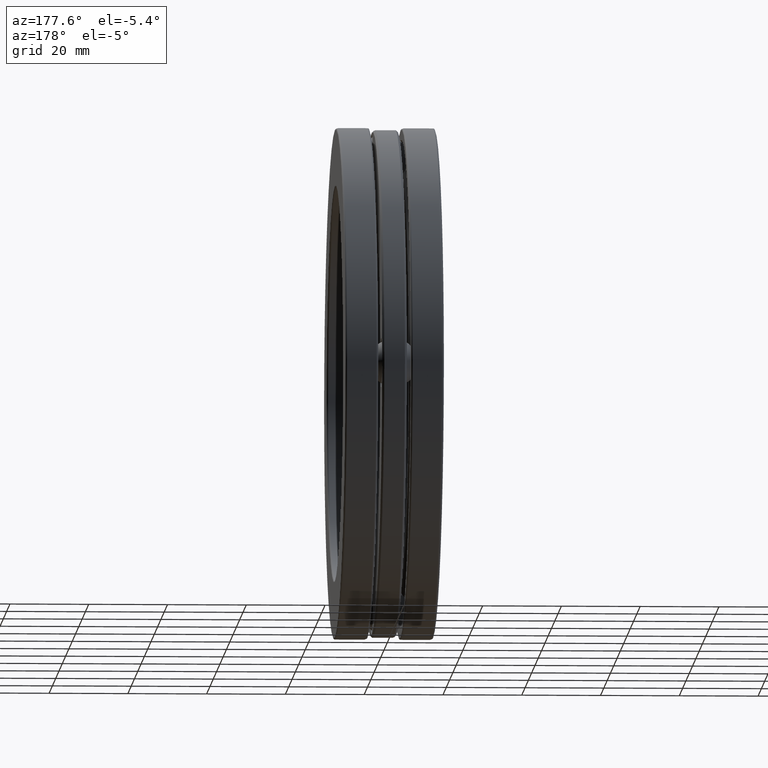
[diagram: clean part render]
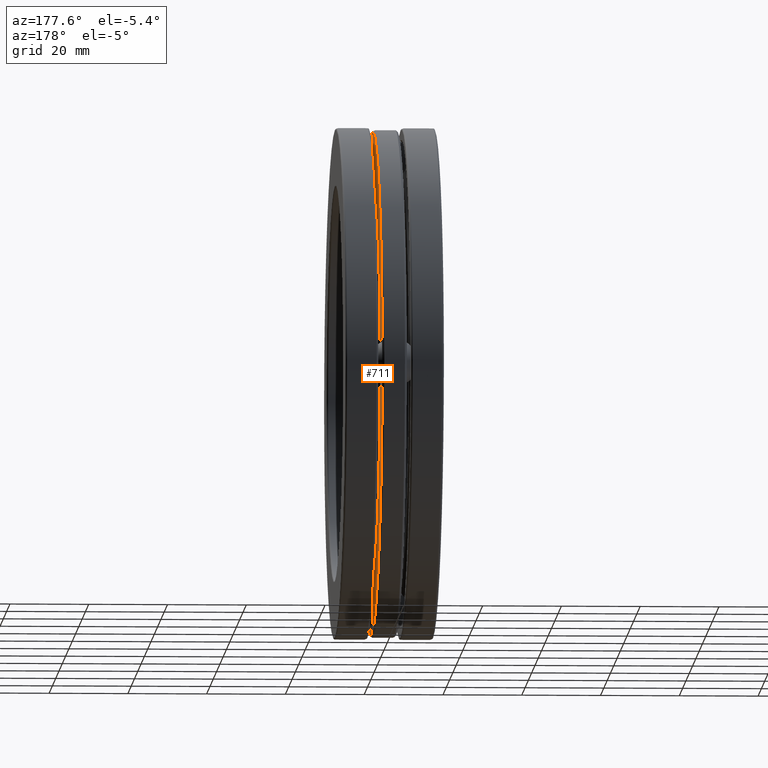
[diagram: same view with one face highlighted and labeled with its STEP entity id]
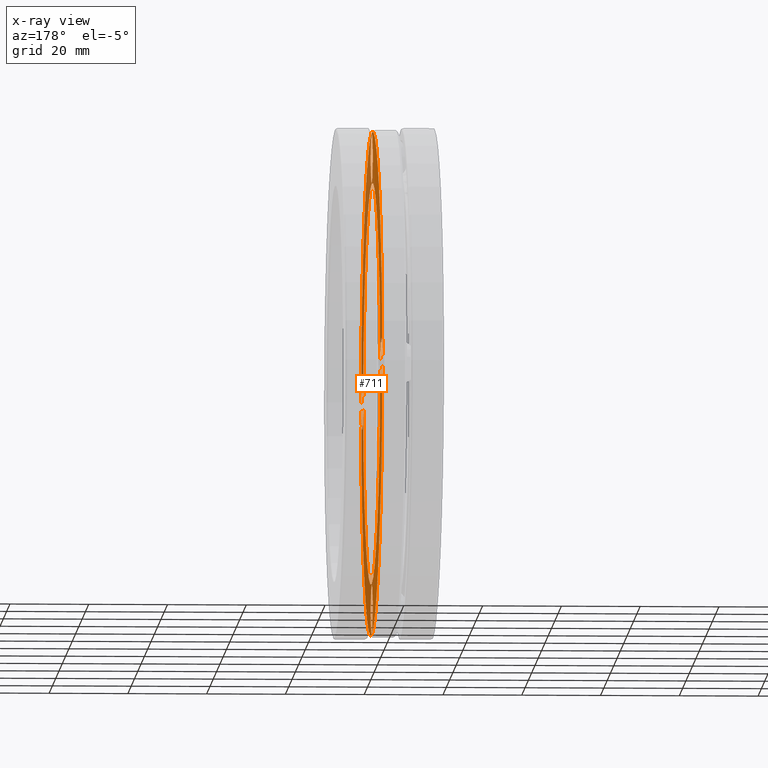
[diagram: x-ray of the same camera — body ghosted, the highlighted face saturated]
A machine part, auxiliary view. The second image highlights one B-rep face of the part: STEP entity #711.
The next image is the same camera in x-ray: the body ghosted, the highlighted face saturated — about 52% of this face is hidden behind the body in this view.
In plain terms, the highlighted planar face has unit normal (1, 0, 0).
Its self-contained STEP definition (entity closure, byte-faithful):
#12 = FACE_BOUND ( 'NONE', #197, .T. ) ;
#26 = CARTESIAN_POINT ( 'NONE',  ( 0.1230000000000000000, 2.263749999999999900, 0.0000000000000000000 ) ) ;
#34 = FACE_BOUND ( 'NONE', #412, .T. ) ;
#45 = VERTEX_POINT ( 'NONE', #736 ) ;
#57 = EDGE_CURVE ( 'NONE', #381, #381, #739, .T. ) ;
#61 = CARTESIAN_POINT ( 'NONE',  ( 0.1230000000000000000, 2.263749999999999900, -0.2470000000000005000 ) ) ;
#86 = ORIENTED_EDGE ( 'NONE', *, *, #275, .F. ) ;
#88 = DIRECTION ( 'NONE',  ( 0.0000000000000000000, -1.000000000000000000, 3.318034000401932600E-015 ) ) ;
#90 = DIRECTION ( 'NONE',  ( 0.0000000000000000000, 0.0000000000000000000, 1.000000000000000000 ) ) ;
#108 = EDGE_CURVE ( 'NONE', #45, #45, #658, .T. ) ;
#111 = DIRECTION ( 'NONE',  ( 0.0000000000000000000, 0.0000000000000000000, 1.000000000000000000 ) ) ;
#122 = CARTESIAN_POINT ( 'NONE',  ( 0.1230000000000000300, 0.0000000000000000000, 2.008500000000000600 ) ) ;
#127 = CIRCLE ( 'NONE', #516, 2.008500000000000600 ) ;
#129 = ORIENTED_EDGE ( 'NONE', *, *, #433, .F. ) ;
#144 = AXIS2_PLACEMENT_3D ( 'NONE', #26, #335, #786 ) ;
#172 = FACE_BOUND ( 'NONE', #806, .T. ) ;
#183 = AXIS2_PLACEMENT_3D ( 'NONE', #522, #461, #88 ) ;
#187 = ORIENTED_EDGE ( 'NONE', *, *, #688, .F. ) ;
#197 = EDGE_LOOP ( 'NONE', ( #255 ) ) ;
#205 = EDGE_LOOP ( 'NONE', ( #624 ) ) ;
#211 = ORIENTED_EDGE ( 'NONE', *, *, #108, .F. ) ;
#227 = FACE_BOUND ( 'NONE', #628, .T. ) ;
#230 = CARTESIAN_POINT ( 'NONE',  ( 0.1230000000000000000, 2.371152264241843100E-014, 2.263749999999999900 ) ) ;
#237 = DIRECTION ( 'NONE',  ( 0.0000000000000000000, 0.0000000000000000000, -1.000000000000000000 ) ) ;
#249 = CIRCLE ( 'NONE', #397, 0.2470000000000005000 ) ;
#255 = ORIENTED_EDGE ( 'NONE', *, *, #382, .T. ) ;
#275 = EDGE_CURVE ( 'NONE', #587, #587, #609, .T. ) ;
#279 = CARTESIAN_POINT ( 'NONE',  ( 0.1230000000000000000, -2.263749999999999900, 0.0000000000000000000 ) ) ;
#280 = CIRCLE ( 'NONE', #144, 0.2470000000000005000 ) ;
#299 = CARTESIAN_POINT ( 'NONE',  ( 0.1229999999999999400, 0.0000000000000000000, 2.519000000000001000 ) ) ;
#335 = DIRECTION ( 'NONE',  ( 1.000000000000000000, -0.0000000000000000000, 0.0000000000000000000 ) ) ;
#367 = VERTEX_POINT ( 'NONE', #122 ) ;
#376 = AXIS2_PLACEMENT_3D ( 'NONE', #230, #738, #539 ) ;
#381 = VERTEX_POINT ( 'NONE', #299 ) ;
#382 = EDGE_CURVE ( 'NONE', #367, #367, #127, .T. ) ;
#383 = CARTESIAN_POINT ( 'NONE',  ( 0.1230000000000000000, 0.2470000000000242000, 2.263749999999997700 ) ) ;
#397 = AXIS2_PLACEMENT_3D ( 'NONE', #279, #543, #111 ) ;
#402 = AXIS2_PLACEMENT_3D ( 'NONE', #697, #571, #568 ) ;
#412 = EDGE_LOOP ( 'NONE', ( #211 ) ) ;
#425 = VERTEX_POINT ( 'NONE', #61 ) ;
#433 = EDGE_CURVE ( 'NONE', #425, #425, #280, .T. ) ;
#452 = AXIS2_PLACEMENT_3D ( 'NONE', #603, #541, #237 ) ;
#461 = DIRECTION ( 'NONE',  ( 1.000000000000000000, 0.0000000000000000000, 0.0000000000000000000 ) ) ;
#478 = VERTEX_POINT ( 'NONE', #753 ) ;
#484 = EDGE_LOOP ( 'NONE', ( #86 ) ) ;
#500 = FACE_BOUND ( 'NONE', #484, .T. ) ;
#516 = AXIS2_PLACEMENT_3D ( 'NONE', #701, #646, #90 ) ;
#522 = CARTESIAN_POINT ( 'NONE',  ( 0.1230000000000000000, -7.903840880806144200E-015, -2.263749999999999900 ) ) ;
#538 = FACE_OUTER_BOUND ( 'NONE', #205, .T. ) ;
#539 = DIRECTION ( 'NONE',  ( 0.0000000000000000000, 1.000000000000000000, -9.954102001205798600E-015 ) ) ;
#541 = DIRECTION ( 'NONE',  ( 1.000000000000000000, 0.0000000000000000000, 0.0000000000000000000 ) ) ;
#543 = DIRECTION ( 'NONE',  ( 1.000000000000000000, 0.0000000000000000000, 0.0000000000000000000 ) ) ;
#568 = DIRECTION ( 'NONE',  ( 0.0000000000000000000, 0.0000000000000000000, 1.000000000000000000 ) ) ;
#571 = DIRECTION ( 'NONE',  ( -1.000000000000000000, -0.0000000000000000000, -0.0000000000000000000 ) ) ;
#587 = VERTEX_POINT ( 'NONE', #383 ) ;
#603 = CARTESIAN_POINT ( 'NONE',  ( 0.1230000000000000000, 2.056912972702650500E-017, 0.0000000000000000000 ) ) ;
#609 = CIRCLE ( 'NONE', #376, 0.2470000000000005000 ) ;
#624 = ORIENTED_EDGE ( 'NONE', *, *, #57, .F. ) ;
#628 = EDGE_LOOP ( 'NONE', ( #187 ) ) ;
#646 = DIRECTION ( 'NONE',  ( -1.000000000000000000, -0.0000000000000000000, -0.0000000000000000000 ) ) ;
#658 = CIRCLE ( 'NONE', #183, 0.2470000000000005000 ) ;
#688 = EDGE_CURVE ( 'NONE', #478, #478, #249, .T. ) ;
#697 = CARTESIAN_POINT ( 'NONE',  ( 0.1229999999999999400, 0.0000000000000000000, 0.0000000000000000000 ) ) ;
#701 = CARTESIAN_POINT ( 'NONE',  ( 0.1230000000000000300, 0.0000000000000000000, 0.0000000000000000000 ) ) ;
#711 = ADVANCED_FACE ( 'NONE', ( #34, #227, #500, #172, #12, #538 ), #749, .T. ) ;
#736 = CARTESIAN_POINT ( 'NONE',  ( 0.1230000000000000000, -0.2470000000000083800, -2.263749999999999500 ) ) ;
#738 = DIRECTION ( 'NONE',  ( 1.000000000000000000, 0.0000000000000000000, 0.0000000000000000000 ) ) ;
#739 = CIRCLE ( 'NONE', #402, 2.519000000000001000 ) ;
#749 = PLANE ( 'NONE',  #452 ) ;
#753 = CARTESIAN_POINT ( 'NONE',  ( 0.1230000000000000000, -2.263749999999999900, 0.2470000000000005000 ) ) ;
#786 = DIRECTION ( 'NONE',  ( 0.0000000000000000000, 0.0000000000000000000, -1.000000000000000000 ) ) ;
#806 = EDGE_LOOP ( 'NONE', ( #129 ) ) ;